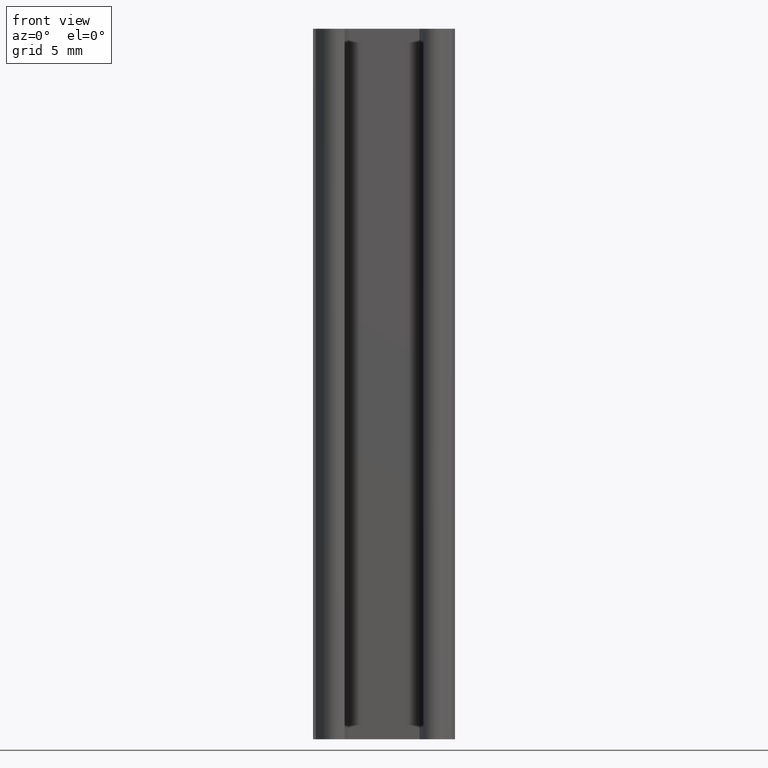
[diagram: clean part render]
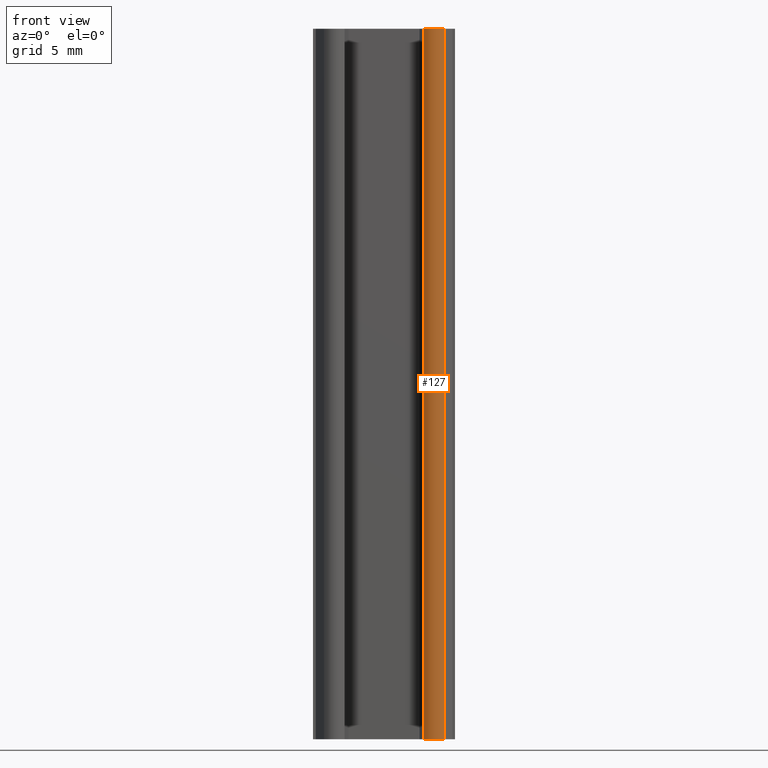
[diagram: same view with one face highlighted and labeled with its STEP entity id]
A machine part, front view. The second image highlights one B-rep face of the part: STEP entity #127.
In plain terms, the highlighted cylindrical surface (edge-blend (fillet) strip) has radius 0.95 mm, axis along (0, -0, 1).
Its self-contained STEP definition (entity closure, byte-faithful):
#18 = CARTESIAN_POINT ( 'NONE',  ( 6.733580575902364800, 0.3669048108833120000, 0.0000000000000000000 ) ) ;
#29 = CARTESIAN_POINT ( 'NONE',  ( 8.189843712769047100, 0.3146320893094646200, 50.00000000000000000 ) ) ;
#37 = CARTESIAN_POINT ( 'NONE',  ( 8.189843712769047100, 0.3146320893094646800, -1.734723475976807100E-015 ) ) ;
#50 = CARTESIAN_POINT ( 'NONE',  ( 6.733580575902364800, 0.3669048108833120000, 50.00000000000000000 ) ) ;
#68 = DIRECTION ( 'NONE',  ( 1.000000000000000000, 0.0000000000000000000, 0.0000000000000000000 ) ) ;
#69 = DIRECTION ( 'NONE',  ( -0.0000000000000000000, 0.0000000000000000000, -1.000000000000000000 ) ) ;
#70 = CARTESIAN_POINT ( 'NONE',  ( 7.483580575999998700, 0.9500000000000000700, 0.0000000000000000000 ) ) ;
#98 = DIRECTION ( 'NONE',  ( 0.0000000000000000000, 0.0000000000000000000, 1.000000000000000000 ) ) ;
#99 = CARTESIAN_POINT ( 'NONE',  ( 8.189843709999999900, 0.3146320860000000300, 25.00000000000000000 ) ) ;
#127 = ADVANCED_FACE ( 'NONE', ( #462 ), #463, .T. ) ;
#144 = EDGE_CURVE ( 'NONE', #228, #197, #459, .T. ) ;
#146 = EDGE_CURVE ( 'NONE', #228, #191, #444, .T. ) ;
#156 = EDGE_CURVE ( 'NONE', #187, #191, #342, .T. ) ;
#175 = EDGE_CURVE ( 'NONE', #187, #197, #323, .T. ) ;
#187 = VERTEX_POINT ( 'NONE', #37 ) ;
#191 = VERTEX_POINT ( 'NONE', #29 ) ;
#197 = VERTEX_POINT ( 'NONE', #18 ) ;
#223 = CARTESIAN_POINT ( 'NONE',  ( 7.483580575999998700, 0.9500000000000000700, 0.0000000000000000000 ) ) ;
#224 = DIRECTION ( 'NONE',  ( 0.0000000000000000000, -0.0000000000000000000, 1.000000000000000000 ) ) ;
#225 = DIRECTION ( 'NONE',  ( 1.000000000000000000, 0.0000000000000000000, 0.0000000000000000000 ) ) ;
#228 = VERTEX_POINT ( 'NONE', #50 ) ;
#262 = ORIENTED_EDGE ( 'NONE', *, *, #144, .T. ) ;
#321 = ORIENTED_EDGE ( 'NONE', *, *, #175, .F. ) ;
#323 = CIRCLE ( 'NONE', #505, 0.9500000000000038400 ) ;
#324 = ORIENTED_EDGE ( 'NONE', *, *, #156, .T. ) ;
#325 = ORIENTED_EDGE ( 'NONE', *, *, #146, .F. ) ;
#342 = LINE ( 'NONE', #99, #345 ) ;
#345 = VECTOR ( 'NONE', #98, 1000.000000000000000 ) ;
#391 = EDGE_LOOP ( 'NONE', ( #262, #321, #324, #325 ) ) ;
#444 = CIRCLE ( 'NONE', #511, 0.9500000000000038400 ) ;
#457 = VECTOR ( 'NONE', #573, 1000.000000000000000 ) ;
#459 = LINE ( 'NONE', #568, #457 ) ;
#462 = FACE_OUTER_BOUND ( 'NONE', #391, .T. ) ;
#463 = CYLINDRICAL_SURFACE ( 'NONE', #519, 0.9500000000000038400 ) ;
#505 = AXIS2_PLACEMENT_3D ( 'NONE', #70, #69, #68 ) ;
#511 = AXIS2_PLACEMENT_3D ( 'NONE', #525, #566, #564 ) ;
#519 = AXIS2_PLACEMENT_3D ( 'NONE', #223, #224, #225 ) ;
#525 = CARTESIAN_POINT ( 'NONE',  ( 7.483580575999998700, 0.9500000000000000700, 50.00000000000000000 ) ) ;
#564 = DIRECTION ( 'NONE',  ( 1.000000000000000000, 0.0000000000000000000, 0.0000000000000000000 ) ) ;
#566 = DIRECTION ( 'NONE',  ( 0.0000000000000000000, -0.0000000000000000000, 1.000000000000000000 ) ) ;
#568 = CARTESIAN_POINT ( 'NONE',  ( 6.733580575999998700, 0.3669048110000001100, 25.00000000000000000 ) ) ;
#573 = DIRECTION ( 'NONE',  ( -0.0000000000000000000, -0.0000000000000000000, -1.000000000000000000 ) ) ;